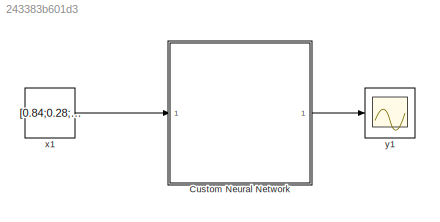
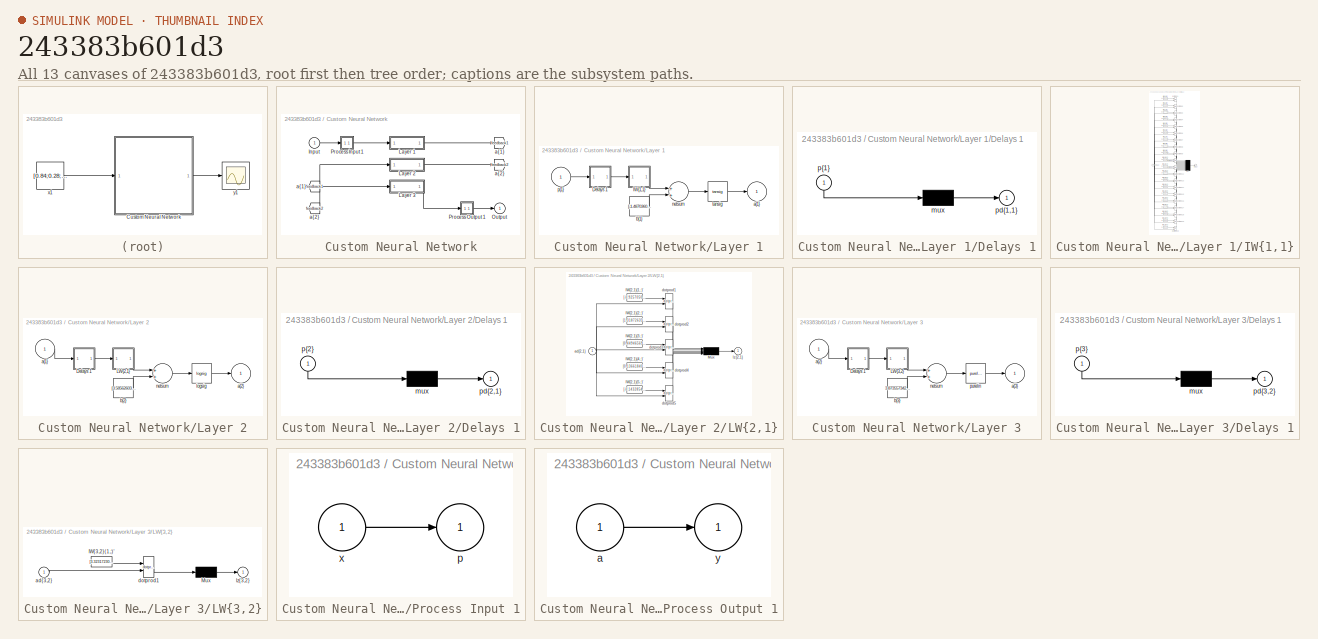
[diagram: thumbnail index - all 13 canvases of the model, root first then tree order]
MODEL slx_243383b601d3
KIND model
CONFIG AbsTol = auto
CONFIG EnableMultiTasking = off
CONFIG FixedStep = auto
CONFIG MaxStep = auto
CONFIG MinStep = auto
CONFIG RelTol = 1e-3
CONFIG SampleTimeConstraint = Unconstrained
CONFIG Solver = VariableStepAuto
CONFIG SolverName = VariableStepAuto
CONFIG StartTime = 0.0
CONFIG StopTime = 10.0
BLOCK [SubSystem] Custom Neural Network
  Ports = [1, 1]
  RequestExecContextInheritance = off
  Variant = off
BLOCK [From] Custom Neural Network/ a{1} 
  GotoTag = feedback1
BLOCK [From] Custom Neural Network/ a{2} 
  GotoTag = feedback2
BLOCK [Inport] Custom Neural Network/Input
  IconDisplay = Port number
  PortDimensions = 3
BLOCK [SubSystem] Custom Neural Network/Layer 1
  Ports = [1, 1]
  RequestExecContextInheritance = off
  Variant = off
BLOCK [SubSystem] Custom Neural Network/Layer 1/Delays 1
  Ports = [1, 1]
  RequestExecContextInheritance = off
  Variant = off
BLOCK [Mux] Custom Neural Network/Layer 1/Delays 1/mux
  Inputs = 1
  Ports = [1, 1]
BLOCK [Outport] Custom Neural Network/Layer 1/Delays 1/pd{1,1}
  IconDisplay = Port number
BLOCK [Inport] Custom Neural Network/Layer 1/Delays 1/p{1}
  IconDisplay = Port number
  PortDimensions = 3
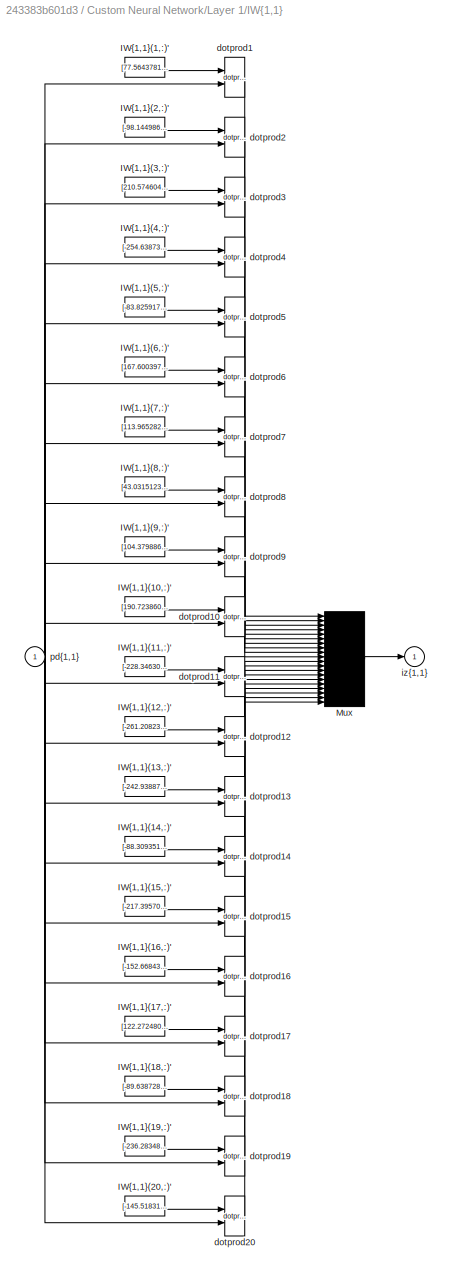
BLOCK [SubSystem] Custom Neural Network/Layer 1/IW{1,1}
  Ports = [1, 1]
  RequestExecContextInheritance = off
  Variant = off
BLOCK [Constant] Custom Neural Network/Layer 1/IW{1,1}/IW{1,1}(1,:)'
  Value = [77.5643781500551909857676946558058261871337890625;16.7822413652701669661837513558566570281982421875;0.01365506815999049071430615498456973000429570674896240234375]
BLOCK [Constant] Custom Neural Network/Layer 1/IW{1,1}/IW{1,1}(10,:)'
  Value = [190.723860716227363809593953192234039306640625;9.7629006233463844210973547887988388538360595703125;0.0497665617083417888277807605845737271010875701904296875]
BLOCK [Constant] Custom Neural Network/Layer 1/IW{1,1}/IW{1,1}(11,:)'
  Value = [-228.3463022169629539348534308373928070068359375;-16.000696254974105414703444694168865680694580078125;-0.00790686008955201503900500625832137302495539188385009765625]
BLOCK [Constant] Custom Neural Network/Layer 1/IW{1,1}/IW{1,1}(12,:)'
  Value = [-261.20823921115578514218213967978954315185546875;-10.8347586066941321547574261785484850406646728515625;0.388289365723650192752103293969412334263324737548828125]
BLOCK [Constant] Custom Neural Network/Layer 1/IW{1,1}/IW{1,1}(13,:)'
  Value = [-242.9388763296668685143231414258480072021484375;19.276983067467508448089574812911450862884521484375;0.146576204317648228769854767961078323423862457275390625]
BLOCK [Constant] Custom Neural Network/Layer 1/IW{1,1}/IW{1,1}(14,:)'
  Value = [-88.309351319106241362533182837069034576416015625;-18.734876729374814630091350409202277660369873046875;0.52645624509856292494447416174807585775852203369140625]
BLOCK [Constant] Custom Neural Network/Layer 1/IW{1,1}/IW{1,1}(15,:)'
  Value = [-217.39570487190957237544353120028972625732421875;-15.3551855896504747533981571905314922332763671875;0.11076690601105197708786676003001048229634761810302734375]
BLOCK [Constant] Custom Neural Network/Layer 1/IW{1,1}/IW{1,1}(16,:)'
  Value = [-152.668439742082455268246121704578399658203125;-18.680169445844487796648536459542810916900634765625;-0.08256644445768468454360800024005584418773651123046875]
BLOCK [Constant] Custom Neural Network/Layer 1/IW{1,1}/IW{1,1}(17,:)'
  Value = [122.272480212914075536900782026350498199462890625;-16.007769816139624907691541011445224285125732421875;0.30182160386999357104542696106364019215106964111328125]
BLOCK [Constant] Custom Neural Network/Layer 1/IW{1,1}/IW{1,1}(18,:)'
  Value = [-89.638728445288421653458499349653720855712890625;-2.872361075445937661498874149401672184467315673828125;-0.0410592062398744961360108618464437313377857208251953125]
BLOCK [Constant] Custom Neural Network/Layer 1/IW{1,1}/IW{1,1}(19,:)'
  Value = [-236.283483857654317716878722421824932098388671875;-16.578434767357808965471122064627707004547119140625;-7.63117726641143523380605984129942953586578369140625]
BLOCK [Constant] Custom Neural Network/Layer 1/IW{1,1}/IW{1,1}(2,:)'
  Value = [-98.1449867223830523244032519869506359100341796875;-11.4614141017716946180371451191604137420654296875;-0.08538728926916037964556238648583530448377132415771484375]
BLOCK [Constant] Custom Neural Network/Layer 1/IW{1,1}/IW{1,1}(20,:)'
  Value = [-145.518318988917116030279430560767650604248046875;14.4392096753615692961147942696698009967803955078125;0.313749042935470512372120310828904621303081512451171875]
BLOCK [Constant] Custom Neural Network/Layer 1/IW{1,1}/IW{1,1}(3,:)'
  Value = [210.574604014052312095373054035007953643798828125;9.410627781170557426548839430324733257293701171875;0.0861046092861901257720091962255537509918212890625]
BLOCK [Constant] Custom Neural Network/Layer 1/IW{1,1}/IW{1,1}(4,:)'
  Value = [-254.6387379441151779246865771710872650146484375;-21.20179213787621819164996850304305553436279296875;0.31296505137413721531203236736473627388477325439453125]
BLOCK [Constant] Custom Neural Network/Layer 1/IW{1,1}/IW{1,1}(5,:)'
  Value = [-83.82591744496909313966170884668827056884765625;-7.99078524786944210944739097612909972667694091796875;-0.41592651509284983557535042564268223941326141357421875]
BLOCK [Constant] Custom Neural Network/Layer 1/IW{1,1}/IW{1,1}(6,:)'
  Value = [167.60039731956612740759737789630889892578125;58.42709487239321930474034161306917667388916015625;-0.373177794365607773396931179377133958041667938232421875]
BLOCK [Constant] Custom Neural Network/Layer 1/IW{1,1}/IW{1,1}(7,:)'
  Value = [113.9652829800464814979932270944118499755859375;23.711569669322674513978199684061110019683837890625;-0.2354784938074974964816732381223118863999843597412109375]
BLOCK [Constant] Custom Neural Network/Layer 1/IW{1,1}/IW{1,1}(8,:)'
  Value = [43.031512395787530067536863498389720916748046875;13.0395652837316138317191871465183794498443603515625;-0.368695448079933651985840015186113305389881134033203125]
BLOCK [Constant] Custom Neural Network/Layer 1/IW{1,1}/IW{1,1}(9,:)'
  Value = [104.3798860859237578324609785340726375579833984375;16.43771962948019194072912796400487422943115234375;-0.0200010042884630236115217627457241178490221500396728515625]
BLOCK [Mux] Custom Neural Network/Layer 1/IW{1,1}/Mux
  Inputs = 20
  Ports = [20, 1]
BLOCK [Reference] Custom Neural Network/Layer 1/IW{1,1}/dotprod1  REF=neural/Weight Functions/dotprod
  Ports = [2, 1]
  SourceBlock = neural/Weight Functions/dotprod
  SourceProductBaseCode = NN
  SourceProductName = Neural Network Toolbox
  SourceType = DOTPROD
BLOCK [Reference] Custom Neural Network/Layer 1/IW{1,1}/dotprod10  REF=neural/Weight Functions/dotprod
  Ports = [2, 1]
  SourceBlock = neural/Weight Functions/dotprod
  SourceProductBaseCode = NN
  SourceProductName = Neural Network Toolbox
  SourceType = DOTPROD
BLOCK [Reference] Custom Neural Network/Layer 1/IW{1,1}/dotprod11  REF=neural/Weight Functions/dotprod
  Ports = [2, 1]
  SourceBlock = neural/Weight Functions/dotprod
  SourceProductBaseCode = NN
  SourceProductName = Neural Network Toolbox
  SourceType = DOTPROD
BLOCK [Reference] Custom Neural Network/Layer 1/IW{1,1}/dotprod12  REF=neural/Weight Functions/dotprod
  Ports = [2, 1]
  SourceBlock = neural/Weight Functions/dotprod
  SourceProductBaseCode = NN
  SourceProductName = Neural Network Toolbox
  SourceType = DOTPROD
BLOCK [Reference] Custom Neural Network/Layer 1/IW{1,1}/dotprod13  REF=neural/Weight Functions/dotprod
  Ports = [2, 1]
  SourceBlock = neural/Weight Functions/dotprod
  SourceProductBaseCode = NN
  SourceProductName = Neural Network Toolbox
  SourceType = DOTPROD
BLOCK [Reference] Custom Neural Network/Layer 1/IW{1,1}/dotprod14  REF=neural/Weight Functions/dotprod
  Ports = [2, 1]
  SourceBlock = neural/Weight Functions/dotprod
  SourceProductBaseCode = NN
  SourceProductName = Neural Network Toolbox
  SourceType = DOTPROD
BLOCK [Reference] Custom Neural Network/Layer 1/IW{1,1}/dotprod15  REF=neural/Weight Functions/dotprod
  Ports = [2, 1]
  SourceBlock = neural/Weight Functions/dotprod
  SourceProductBaseCode = NN
  SourceProductName = Neural Network Toolbox
  SourceType = DOTPROD
BLOCK [Reference] Custom Neural Network/Layer 1/IW{1,1}/dotprod16  REF=neural/Weight Functions/dotprod
  Ports = [2, 1]
  SourceBlock = neural/Weight Functions/dotprod
  SourceProductBaseCode = NN
  SourceProductName = Neural Network Toolbox
  SourceType = DOTPROD
BLOCK [Reference] Custom Neural Network/Layer 1/IW{1,1}/dotprod17  REF=neural/Weight Functions/dotprod
  Ports = [2, 1]
  SourceBlock = neural/Weight Functions/dotprod
  SourceProductBaseCode = NN
  SourceProductName = Neural Network Toolbox
  SourceType = DOTPROD
BLOCK [Reference] Custom Neural Network/Layer 1/IW{1,1}/dotprod18  REF=neural/Weight Functions/dotprod
  Ports = [2, 1]
  SourceBlock = neural/Weight Functions/dotprod
  SourceProductBaseCode = NN
  SourceProductName = Neural Network Toolbox
  SourceType = DOTPROD
BLOCK [Reference] Custom Neural Network/Layer 1/IW{1,1}/dotprod19  REF=neural/Weight Functions/dotprod
  Ports = [2, 1]
  SourceBlock = neural/Weight Functions/dotprod
  SourceProductBaseCode = NN
  SourceProductName = Neural Network Toolbox
  SourceType = DOTPROD
BLOCK [Reference] Custom Neural Network/Layer 1/IW{1,1}/dotprod2  REF=neural/Weight Functions/dotprod
  Ports = [2, 1]
  SourceBlock = neural/Weight Functions/dotprod
  SourceProductBaseCode = NN
  SourceProductName = Neural Network Toolbox
  SourceType = DOTPROD
BLOCK [Reference] Custom Neural Network/Layer 1/IW{1,1}/dotprod20  REF=neural/Weight Functions/dotprod
  Ports = [2, 1]
  SourceBlock = neural/Weight Functions/dotprod
  SourceProductBaseCode = NN
  SourceProductName = Neural Network Toolbox
  SourceType = DOTPROD
BLOCK [Reference] Custom Neural Network/Layer 1/IW{1,1}/dotprod3  REF=neural/Weight Functions/dotprod
  Ports = [2, 1]
  SourceBlock = neural/Weight Functions/dotprod
  SourceProductBaseCode = NN
  SourceProductName = Neural Network Toolbox
  SourceType = DOTPROD
BLOCK [Reference] Custom Neural Network/Layer 1/IW{1,1}/dotprod4  REF=neural/Weight Functions/dotprod
  Ports = [2, 1]
  SourceBlock = neural/Weight Functions/dotprod
  SourceProductBaseCode = NN
  SourceProductName = Neural Network Toolbox
  SourceType = DOTPROD
BLOCK [Reference] Custom Neural Network/Layer 1/IW{1,1}/dotprod5  REF=neural/Weight Functions/dotprod
  Ports = [2, 1]
  SourceBlock = neural/Weight Functions/dotprod
  SourceProductBaseCode = NN
  SourceProductName = Neural Network Toolbox
  SourceType = DOTPROD
BLOCK [Reference] Custom Neural Network/Layer 1/IW{1,1}/dotprod6  REF=neural/Weight Functions/dotprod
  Ports = [2, 1]
  SourceBlock = neural/Weight Functions/dotprod
  SourceProductBaseCode = NN
  SourceProductName = Neural Network Toolbox
  SourceType = DOTPROD
BLOCK [Reference] Custom Neural Network/Layer 1/IW{1,1}/dotprod7  REF=neural/Weight Functions/dotprod
  Ports = [2, 1]
  SourceBlock = neural/Weight Functions/dotprod
  SourceProductBaseCode = NN
  SourceProductName = Neural Network Toolbox
  SourceType = DOTPROD
BLOCK [Reference] Custom Neural Network/Layer 1/IW{1,1}/dotprod8  REF=neural/Weight Functions/dotprod
  Ports = [2, 1]
  SourceBlock = neural/Weight Functions/dotprod
  SourceProductBaseCode = NN
  SourceProductName = Neural Network Toolbox
  SourceType = DOTPROD
BLOCK [Reference] Custom Neural Network/Layer 1/IW{1,1}/dotprod9  REF=neural/Weight Functions/dotprod
  Ports = [2, 1]
  SourceBlock = neural/Weight Functions/dotprod
  SourceProductBaseCode = NN
  SourceProductName = Neural Network Toolbox
  SourceType = DOTPROD
BLOCK [Outport] Custom Neural Network/Layer 1/IW{1,1}/iz{1,1}
  IconDisplay = Port number
BLOCK [Inport] Custom Neural Network/Layer 1/IW{1,1}/pd{1,1}
  IconDisplay = Port number
  PortDimensions = 3
BLOCK [Outport] Custom Neural Network/Layer 1/a{1}
  IconDisplay = Port number
  InitialOutput = [0;0;0;0;0;0;0;0;0;0;0;0;0;0;0;0;0;0;0;0]
BLOCK [Constant] Custom Neural Network/Layer 1/b{1}
  Value = [-1.487036069525373704891535453498363494873046875;5.22498880789575270711111443233676254749298095703125;-5.77554145226792048362085552071221172809600830078125;1.4589255038114938844984180832398124039173126220703125;6.99072146054141985160867989179678261280059814453125;-8.8182806189804328056425219983793795108795166015625;-1.6077045993571903448327020669239573180675506591796875;0.708759640200917084840170...<+677ch>
BLOCK [Sum] Custom Neural Network/Layer 1/netsum
  Inputs = 2
  Ports = [2, 1]
BLOCK [Inport] Custom Neural Network/Layer 1/p{1}
  IconDisplay = Port number
  PortDimensions = 3
BLOCK [Reference] Custom Neural Network/Layer 1/tansig  REF=neural/Transfer Functions/tansig
  Ports = [1, 1]
  SourceBlock = neural/Transfer Functions/tansig
  SourceProductBaseCode = NN
  SourceProductName = Neural Network Toolbox
  SourceType = TANSIG
BLOCK [SubSystem] Custom Neural Network/Layer 2
  Ports = [1, 1]
  RequestExecContextInheritance = off
  Variant = off
BLOCK [SubSystem] Custom Neural Network/Layer 2/Delays 1
  Ports = [1, 1]
  RequestExecContextInheritance = off
  Variant = off
BLOCK [Mux] Custom Neural Network/Layer 2/Delays 1/mux
  Inputs = 1
  Ports = [1, 1]
BLOCK [Outport] Custom Neural Network/Layer 2/Delays 1/pd{2,1}
  IconDisplay = Port number
BLOCK [Inport] Custom Neural Network/Layer 2/Delays 1/p{2}
  IconDisplay = Port number
  PortDimensions = 20
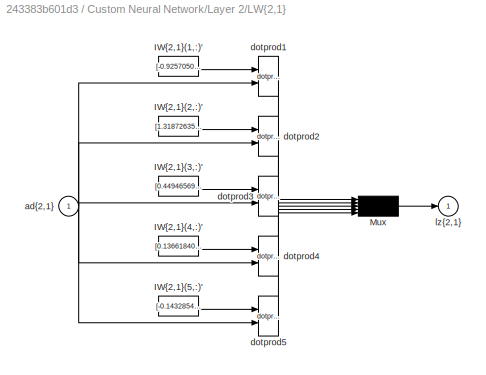
BLOCK [SubSystem] Custom Neural Network/Layer 2/LW{2,1}
  Ports = [1, 1]
  RequestExecContextInheritance = off
  Variant = off
BLOCK [Constant] Custom Neural Network/Layer 2/LW{2,1}/IW{2,1}(1,:)'
  Value = [-0.92570501663491244759285336840548552572727203369140625;-1.2365226132554012483666383559466339647769927978515625;-1.662565189936718201835219588247127830982208251953125;-0.49936726746016935063465780331171117722988128662109375;0.6396752563710326189294619325664825737476348876953125;-0.1223853849310526931137843575925217010080814361572265625;4.86688256843853839228586366516537964344024658203125;0.41319...<+722ch>
BLOCK [Constant] Custom Neural Network/Layer 2/LW{2,1}/IW{2,1}(2,:)'
  Value = [1.31872635768386015087116902577690780162811279296875;-0.0032491430274724530415098033842014046967960894107818603515625;1.933547954544418967515184704097919166088104248046875;-0.476317638430824252804285379170323722064495086669921875;0.50302024298476755159725826160865835845470428466796875;-0.1977819952841088635420163654998759739100933074951171875;1.8455769711037370850448269266053102910518646240234375...<+718ch>
BLOCK [Constant] Custom Neural Network/Layer 2/LW{2,1}/IW{2,1}(3,:)'
  Value = [0.44946569807094316484352702900650911033153533935546875;0.095143081761330294821021880125044845044612884521484375;0.46345744154453394347825678778463043272495269775390625;-1.117592939378338368072718367329798638820648193359375;-0.70450516626081161053463119969819672405719757080078125;-0.7155701920174433183774453937076032161712646484375;-0.485068181708110557348589964021812193095684051513671875;-0.9606...<+711ch>
BLOCK [Constant] Custom Neural Network/Layer 2/LW{2,1}/IW{2,1}(4,:)'
  Value = [0.13661840760436472219652159765246324241161346435546875;-0.092460730633099619257819767881301231682300567626953125;0.01449413040976762177824976873807827359996736049652099609375;1.1585121321072462396983837606967426836490631103515625;0.301200537208859364657342894133762456476688385009765625;-0.01290642867447498211286305291878306888975203037261962890625;-1.592221179532499197861739048676099628210067749...<+724ch>
BLOCK [Constant] Custom Neural Network/Layer 2/LW{2,1}/IW{2,1}(5,:)'
  Value = [-0.1432854057877666897891089092809124849736690521240234375;0.69495687908579306668599429031019099056720733642578125;0.50583736089709263605840305899619124829769134521484375;-1.1778495832769906304093865401227958500385284423828125;-0.7561357691175436546160426587448455393314361572265625;-0.318137729325066176411240803645341657102108001708984375;-1.6977768852309511604659064687439240515232086181640625;-0...<+706ch>
BLOCK [Mux] Custom Neural Network/Layer 2/LW{2,1}/Mux
  Inputs = 5
  Ports = [5, 1]
BLOCK [Inport] Custom Neural Network/Layer 2/LW{2,1}/ad{2,1}
  IconDisplay = Port number
  PortDimensions = 20
BLOCK [Reference] Custom Neural Network/Layer 2/LW{2,1}/dotprod1  REF=neural/Weight Functions/dotprod
  Ports = [2, 1]
  SourceBlock = neural/Weight Functions/dotprod
  SourceProductBaseCode = NN
  SourceProductName = Neural Network Toolbox
  SourceType = DOTPROD
BLOCK [Reference] Custom Neural Network/Layer 2/LW{2,1}/dotprod2  REF=neural/Weight Functions/dotprod
  Ports = [2, 1]
  SourceBlock = neural/Weight Functions/dotprod
  SourceProductBaseCode = NN
  SourceProductName = Neural Network Toolbox
  SourceType = DOTPROD
BLOCK [Reference] Custom Neural Network/Layer 2/LW{2,1}/dotprod3  REF=neural/Weight Functions/dotprod
  Ports = [2, 1]
  SourceBlock = neural/Weight Functions/dotprod
  SourceProductBaseCode = NN
  SourceProductName = Neural Network Toolbox
  SourceType = DOTPROD
BLOCK [Reference] Custom Neural Network/Layer 2/LW{2,1}/dotprod4  REF=neural/Weight Functions/dotprod
  Ports = [2, 1]
  SourceBlock = neural/Weight Functions/dotprod
  SourceProductBaseCode = NN
  SourceProductName = Neural Network Toolbox
  SourceType = DOTPROD
BLOCK [Reference] Custom Neural Network/Layer 2/LW{2,1}/dotprod5  REF=neural/Weight Functions/dotprod
  Ports = [2, 1]
  SourceBlock = neural/Weight Functions/dotprod
  SourceProductBaseCode = NN
  SourceProductName = Neural Network Toolbox
  SourceType = DOTPROD
BLOCK [Outport] Custom Neural Network/Layer 2/LW{2,1}/lz{2,1}
  IconDisplay = Port number
BLOCK [Inport] Custom Neural Network/Layer 2/a{1} 
  IconDisplay = Port number
  PortDimensions = 20
BLOCK [Outport] Custom Neural Network/Layer 2/a{2}
  IconDisplay = Port number
  InitialOutput = [0;0;0;0;0]
BLOCK [Constant] Custom Neural Network/Layer 2/b{2}
  Value = [3.585626030233567629323943037888966500759124755859375;-1.2622117719339966956937360009760595858097076416015625;-0.2283983932589087884057477140231640078127384185791015625;1.889226614254667868664228080888278782367706298828125;-3.4221749390384932354436386958695948123931884765625]
BLOCK [Reference] Custom Neural Network/Layer 2/logsig  REF=neural/Transfer Functions/logsig
  Ports = [1, 1]
  SourceBlock = neural/Transfer Functions/logsig
  SourceProductBaseCode = NN
  SourceProductName = Neural Network Toolbox
  SourceType = LOGSIG
BLOCK [Sum] Custom Neural Network/Layer 2/netsum
  Inputs = 2
  Ports = [2, 1]
BLOCK [SubSystem] Custom Neural Network/Layer 3
  Ports = [1, 1]
  RequestExecContextInheritance = off
  Variant = off
BLOCK [SubSystem] Custom Neural Network/Layer 3/Delays 1
  Ports = [1, 1]
  RequestExecContextInheritance = off
  Variant = off
BLOCK [Mux] Custom Neural Network/Layer 3/Delays 1/mux
  Inputs = 1
  Ports = [1, 1]
BLOCK [Outport] Custom Neural Network/Layer 3/Delays 1/pd{3,2}
  IconDisplay = Port number
BLOCK [Inport] Custom Neural Network/Layer 3/Delays 1/p{3}
  IconDisplay = Port number
  PortDimensions = 5
BLOCK [SubSystem] Custom Neural Network/Layer 3/LW{3,2}
  Ports = [1, 1]
  RequestExecContextInheritance = off
  Variant = off
BLOCK [Constant] Custom Neural Network/Layer 3/LW{3,2}/IW{3,2}(1,:)'
  Value = [3.323172303825814299926832973142154514789581298828125;-1.9984880517661824939068537787534296512603759765625;6.8124387429590651521493782638572156429290771484375;4.0203010758155386383805307559669017791748046875;3.2285823109692213250809800229035317897796630859375]
BLOCK [Mux] Custom Neural Network/Layer 3/LW{3,2}/Mux
  Inputs = 1
  Ports = [1, 1]
BLOCK [Inport] Custom Neural Network/Layer 3/LW{3,2}/ad{3,2}
  IconDisplay = Port number
  PortDimensions = 5
BLOCK [Reference] Custom Neural Network/Layer 3/LW{3,2}/dotprod1  REF=neural/Weight Functions/dotprod
  Ports = [2, 1]
  SourceBlock = neural/Weight Functions/dotprod
  SourceProductBaseCode = NN
  SourceProductName = Neural Network Toolbox
  SourceType = DOTPROD
BLOCK [Outport] Custom Neural Network/Layer 3/LW{3,2}/lz{3,2}
  IconDisplay = Port number
BLOCK [Inport] Custom Neural Network/Layer 3/a{2} 
  IconDisplay = Port number
  PortDimensions = 5
BLOCK [Outport] Custom Neural Network/Layer 3/a{3}
  IconDisplay = Port number
  InitialOutput = 0
BLOCK [Constant] Custom Neural Network/Layer 3/b{3}
  Value = 3.87355734278204355547359227784909307956695556640625
BLOCK [Sum] Custom Neural Network/Layer 3/netsum
  Inputs = 2
  Ports = [2, 1]
BLOCK [Reference] Custom Neural Network/Layer 3/purelin  REF=neural/Transfer Functions/purelin
  Ports = [1, 1]
  SourceBlock = neural/Transfer Functions/purelin
  SourceProductBaseCode = NN
  SourceProductName = Neural Network Toolbox
  SourceType = PURELIN
BLOCK [Outport] Custom Neural Network/Output
  IconDisplay = Port number
  InitialOutput = 0
BLOCK [SubSystem] Custom Neural Network/Process Input 1
  Ports = [1, 1]
  RequestExecContextInheritance = off
  Variant = off
BLOCK [Outport] Custom Neural Network/Process Input 1/p
  IconDisplay = Port number
  PortDimensions = 3
BLOCK [Inport] Custom Neural Network/Process Input 1/x
  IconDisplay = Port number
  PortDimensions = 3
BLOCK [SubSystem] Custom Neural Network/Process Output 1
  Ports = [1, 1]
  RequestExecContextInheritance = off
  Variant = off
BLOCK [Inport] Custom Neural Network/Process Output 1/a
  IconDisplay = Port number
  PortDimensions = 1
BLOCK [Outport] Custom Neural Network/Process Output 1/y
  IconDisplay = Port number
  PortDimensions = 1
BLOCK [Goto] Custom Neural Network/a{1}
  GotoTag = feedback1
BLOCK [Goto] Custom Neural Network/a{2}
  GotoTag = feedback2
BLOCK [Constant] x1
  SampleTime = 1
  Value = [0.84;0.28;0.04]
BLOCK [Scope] y1
  NumInputPorts = 1
  Ports = [1]
  ScopeSpecificationString = Simulink.scopes.TimeScopeBlockCfg('CurrentConfiguration', extmgr.ConfigurationSet(extmgr.Configuration('Core','General UI',true),extmgr.Configuration('Core','Source UI',true),extmgr.Configuration('Sources','WiredSimulink',true),extmgr.Configuration('Visuals','Time Domain',true,'SerializedDisplays',{struct('MinYLimReal','3.80448','MaxYLimReal','23.80448','YLabelReal','','MinYLimMag','3.80448','MaxY...<+1401ch>
LINE Custom Neural Network/ a{1} :1 -> Custom Neural Network/Layer 2:1
LINE Custom Neural Network/ a{2} :1 -> Custom Neural Network/Layer 3:1
LINE Custom Neural Network/Input:1 -> Custom Neural Network/Process Input 1:1
LINE Custom Neural Network/Layer 1/Delays 1/mux:1 -> Custom Neural Network/Layer 1/Delays 1/pd{1,1}:1
LINE Custom Neural Network/Layer 1/Delays 1/p{1}:1 -> Custom Neural Network/Layer 1/Delays 1/mux:1
LINE Custom Neural Network/Layer 1/Delays 1:1 -> Custom Neural Network/Layer 1/IW{1,1}:1
LINE Custom Neural Network/Layer 1/IW{1,1}/IW{1,1}(1,:)':1 -> Custom Neural Network/Layer 1/IW{1,1}/dotprod1:1
LINE Custom Neural Network/Layer 1/IW{1,1}/IW{1,1}(10,:)':1 -> Custom Neural Network/Layer 1/IW{1,1}/dotprod10:1
LINE Custom Neural Network/Layer 1/IW{1,1}/IW{1,1}(11,:)':1 -> Custom Neural Network/Layer 1/IW{1,1}/dotprod11:1
LINE Custom Neural Network/Layer 1/IW{1,1}/IW{1,1}(12,:)':1 -> Custom Neural Network/Layer 1/IW{1,1}/dotprod12:1
LINE Custom Neural Network/Layer 1/IW{1,1}/IW{1,1}(13,:)':1 -> Custom Neural Network/Layer 1/IW{1,1}/dotprod13:1
LINE Custom Neural Network/Layer 1/IW{1,1}/IW{1,1}(14,:)':1 -> Custom Neural Network/Layer 1/IW{1,1}/dotprod14:1
LINE Custom Neural Network/Layer 1/IW{1,1}/IW{1,1}(15,:)':1 -> Custom Neural Network/Layer 1/IW{1,1}/dotprod15:1
LINE Custom Neural Network/Layer 1/IW{1,1}/IW{1,1}(16,:)':1 -> Custom Neural Network/Layer 1/IW{1,1}/dotprod16:1
LINE Custom Neural Network/Layer 1/IW{1,1}/IW{1,1}(17,:)':1 -> Custom Neural Network/Layer 1/IW{1,1}/dotprod17:1
LINE Custom Neural Network/Layer 1/IW{1,1}/IW{1,1}(18,:)':1 -> Custom Neural Network/Layer 1/IW{1,1}/dotprod18:1
LINE Custom Neural Network/Layer 1/IW{1,1}/IW{1,1}(19,:)':1 -> Custom Neural Network/Layer 1/IW{1,1}/dotprod19:1
LINE Custom Neural Network/Layer 1/IW{1,1}/IW{1,1}(2,:)':1 -> Custom Neural Network/Layer 1/IW{1,1}/dotprod2:1
LINE Custom Neural Network/Layer 1/IW{1,1}/IW{1,1}(20,:)':1 -> Custom Neural Network/Layer 1/IW{1,1}/dotprod20:1
LINE Custom Neural Network/Layer 1/IW{1,1}/IW{1,1}(3,:)':1 -> Custom Neural Network/Layer 1/IW{1,1}/dotprod3:1
LINE Custom Neural Network/Layer 1/IW{1,1}/IW{1,1}(4,:)':1 -> Custom Neural Network/Layer 1/IW{1,1}/dotprod4:1
LINE Custom Neural Network/Layer 1/IW{1,1}/IW{1,1}(5,:)':1 -> Custom Neural Network/Layer 1/IW{1,1}/dotprod5:1
LINE Custom Neural Network/Layer 1/IW{1,1}/IW{1,1}(6,:)':1 -> Custom Neural Network/Layer 1/IW{1,1}/dotprod6:1
LINE Custom Neural Network/Layer 1/IW{1,1}/IW{1,1}(7,:)':1 -> Custom Neural Network/Layer 1/IW{1,1}/dotprod7:1
LINE Custom Neural Network/Layer 1/IW{1,1}/IW{1,1}(8,:)':1 -> Custom Neural Network/Layer 1/IW{1,1}/dotprod8:1
LINE Custom Neural Network/Layer 1/IW{1,1}/IW{1,1}(9,:)':1 -> Custom Neural Network/Layer 1/IW{1,1}/dotprod9:1
LINE Custom Neural Network/Layer 1/IW{1,1}/Mux:1 -> Custom Neural Network/Layer 1/IW{1,1}/iz{1,1}:1
LINE Custom Neural Network/Layer 1/IW{1,1}/dotprod10:1 -> Custom Neural Network/Layer 1/IW{1,1}/Mux:10
LINE Custom Neural Network/Layer 1/IW{1,1}/dotprod11:1 -> Custom Neural Network/Layer 1/IW{1,1}/Mux:11
LINE Custom Neural Network/Layer 1/IW{1,1}/dotprod12:1 -> Custom Neural Network/Layer 1/IW{1,1}/Mux:12
LINE Custom Neural Network/Layer 1/IW{1,1}/dotprod13:1 -> Custom Neural Network/Layer 1/IW{1,1}/Mux:13
LINE Custom Neural Network/Layer 1/IW{1,1}/dotprod14:1 -> Custom Neural Network/Layer 1/IW{1,1}/Mux:14
LINE Custom Neural Network/Layer 1/IW{1,1}/dotprod15:1 -> Custom Neural Network/Layer 1/IW{1,1}/Mux:15
LINE Custom Neural Network/Layer 1/IW{1,1}/dotprod16:1 -> Custom Neural Network/Layer 1/IW{1,1}/Mux:16
LINE Custom Neural Network/Layer 1/IW{1,1}/dotprod17:1 -> Custom Neural Network/Layer 1/IW{1,1}/Mux:17
LINE Custom Neural Network/Layer 1/IW{1,1}/dotprod18:1 -> Custom Neural Network/Layer 1/IW{1,1}/Mux:18
LINE Custom Neural Network/Layer 1/IW{1,1}/dotprod19:1 -> Custom Neural Network/Layer 1/IW{1,1}/Mux:19
LINE Custom Neural Network/Layer 1/IW{1,1}/dotprod1:1 -> Custom Neural Network/Layer 1/IW{1,1}/Mux:1
LINE Custom Neural Network/Layer 1/IW{1,1}/dotprod20:1 -> Custom Neural Network/Layer 1/IW{1,1}/Mux:20
LINE Custom Neural Network/Layer 1/IW{1,1}/dotprod2:1 -> Custom Neural Network/Layer 1/IW{1,1}/Mux:2
LINE Custom Neural Network/Layer 1/IW{1,1}/dotprod3:1 -> Custom Neural Network/Layer 1/IW{1,1}/Mux:3
LINE Custom Neural Network/Layer 1/IW{1,1}/dotprod4:1 -> Custom Neural Network/Layer 1/IW{1,1}/Mux:4
LINE Custom Neural Network/Layer 1/IW{1,1}/dotprod5:1 -> Custom Neural Network/Layer 1/IW{1,1}/Mux:5
LINE Custom Neural Network/Layer 1/IW{1,1}/dotprod6:1 -> Custom Neural Network/Layer 1/IW{1,1}/Mux:6
LINE Custom Neural Network/Layer 1/IW{1,1}/dotprod7:1 -> Custom Neural Network/Layer 1/IW{1,1}/Mux:7
LINE Custom Neural Network/Layer 1/IW{1,1}/dotprod8:1 -> Custom Neural Network/Layer 1/IW{1,1}/Mux:8
LINE Custom Neural Network/Layer 1/IW{1,1}/dotprod9:1 -> Custom Neural Network/Layer 1/IW{1,1}/Mux:9
NET Custom Neural Network/Layer 1/IW{1,1}/pd{1,1}:1 -> Custom Neural Network/Layer 1/IW{1,1}/dotprod10:2, Custom Neural Network/Layer 1/IW{1,1}/dotprod11:2, Custom Neural Network/Layer 1/IW{1,1}/dotprod12:2, Custom Neural Network/Layer 1/IW{1,1}/dotprod13:2, Custom Neural Network/Layer 1/IW{1,1}/dotprod14:2, Custom Neural Network/Layer 1/IW{1,1}/dotprod15:2, Custom Neural Network/Layer 1/IW{1,1}/dotprod16:2, Custom Neural Network/Layer 1/IW{1,1}/dotprod17:2, Custom Neural Network/Layer 1/IW{1,1}/dotprod18:2, Custom Neural Network/Layer 1/IW{1,1}/dotprod19:2, Custom Neural Network/Layer 1/IW{1,1}/dotprod1:2, Custom Neural Network/Layer 1/IW{1,1}/dotprod20:2, Custom Neural Network/Layer 1/IW{1,1}/dotprod2:2, Custom Neural Network/Layer 1/IW{1,1}/dotprod3:2, Custom Neural Network/Layer 1/IW{1,1}/dotprod4:2, Custom Neural Network/Layer 1/IW{1,1}/dotprod5:2, Custom Neural Network/Layer 1/IW{1,1}/dotprod6:2, Custom Neural Network/Layer 1/IW{1,1}/dotprod7:2, Custom Neural Network/Layer 1/IW{1,1}/dotprod8:2, Custom Neural Network/Layer 1/IW{1,1}/dotprod9:2
LINE Custom Neural Network/Layer 1/IW{1,1}:1 -> Custom Neural Network/Layer 1/netsum:1
LINE Custom Neural Network/Layer 1/b{1}:1 -> Custom Neural Network/Layer 1/netsum:2
LINE Custom Neural Network/Layer 1/netsum:1 -> Custom Neural Network/Layer 1/tansig:1
LINE Custom Neural Network/Layer 1/p{1}:1 -> Custom Neural Network/Layer 1/Delays 1:1
LINE Custom Neural Network/Layer 1/tansig:1 -> Custom Neural Network/Layer 1/a{1}:1
LINE Custom Neural Network/Layer 1:1 -> Custom Neural Network/a{1}:1
LINE Custom Neural Network/Layer 2/Delays 1/mux:1 -> Custom Neural Network/Layer 2/Delays 1/pd{2,1}:1
LINE Custom Neural Network/Layer 2/Delays 1/p{2}:1 -> Custom Neural Network/Layer 2/Delays 1/mux:1
LINE Custom Neural Network/Layer 2/Delays 1:1 -> Custom Neural Network/Layer 2/LW{2,1}:1
LINE Custom Neural Network/Layer 2/LW{2,1}/IW{2,1}(1,:)':1 -> Custom Neural Network/Layer 2/LW{2,1}/dotprod1:1
LINE Custom Neural Network/Layer 2/LW{2,1}/IW{2,1}(2,:)':1 -> Custom Neural Network/Layer 2/LW{2,1}/dotprod2:1
LINE Custom Neural Network/Layer 2/LW{2,1}/IW{2,1}(3,:)':1 -> Custom Neural Network/Layer 2/LW{2,1}/dotprod3:1
LINE Custom Neural Network/Layer 2/LW{2,1}/IW{2,1}(4,:)':1 -> Custom Neural Network/Layer 2/LW{2,1}/dotprod4:1
LINE Custom Neural Network/Layer 2/LW{2,1}/IW{2,1}(5,:)':1 -> Custom Neural Network/Layer 2/LW{2,1}/dotprod5:1
LINE Custom Neural Network/Layer 2/LW{2,1}/Mux:1 -> Custom Neural Network/Layer 2/LW{2,1}/lz{2,1}:1
NET Custom Neural Network/Layer 2/LW{2,1}/ad{2,1}:1 -> Custom Neural Network/Layer 2/LW{2,1}/dotprod1:2, Custom Neural Network/Layer 2/LW{2,1}/dotprod2:2, Custom Neural Network/Layer 2/LW{2,1}/dotprod3:2, Custom Neural Network/Layer 2/LW{2,1}/dotprod4:2, Custom Neural Network/Layer 2/LW{2,1}/dotprod5:2
LINE Custom Neural Network/Layer 2/LW{2,1}/dotprod1:1 -> Custom Neural Network/Layer 2/LW{2,1}/Mux:1
LINE Custom Neural Network/Layer 2/LW{2,1}/dotprod2:1 -> Custom Neural Network/Layer 2/LW{2,1}/Mux:2
LINE Custom Neural Network/Layer 2/LW{2,1}/dotprod3:1 -> Custom Neural Network/Layer 2/LW{2,1}/Mux:3
LINE Custom Neural Network/Layer 2/LW{2,1}/dotprod4:1 -> Custom Neural Network/Layer 2/LW{2,1}/Mux:4
LINE Custom Neural Network/Layer 2/LW{2,1}/dotprod5:1 -> Custom Neural Network/Layer 2/LW{2,1}/Mux:5
LINE Custom Neural Network/Layer 2/LW{2,1}:1 -> Custom Neural Network/Layer 2/netsum:1
LINE Custom Neural Network/Layer 2/a{1} :1 -> Custom Neural Network/Layer 2/Delays 1:1
LINE Custom Neural Network/Layer 2/b{2}:1 -> Custom Neural Network/Layer 2/netsum:2
LINE Custom Neural Network/Layer 2/logsig:1 -> Custom Neural Network/Layer 2/a{2}:1
LINE Custom Neural Network/Layer 2/netsum:1 -> Custom Neural Network/Layer 2/logsig:1
LINE Custom Neural Network/Layer 2:1 -> Custom Neural Network/a{2}:1
LINE Custom Neural Network/Layer 3/Delays 1/mux:1 -> Custom Neural Network/Layer 3/Delays 1/pd{3,2}:1
LINE Custom Neural Network/Layer 3/Delays 1/p{3}:1 -> Custom Neural Network/Layer 3/Delays 1/mux:1
LINE Custom Neural Network/Layer 3/Delays 1:1 -> Custom Neural Network/Layer 3/LW{3,2}:1
LINE Custom Neural Network/Layer 3/LW{3,2}/IW{3,2}(1,:)':1 -> Custom Neural Network/Layer 3/LW{3,2}/dotprod1:1
LINE Custom Neural Network/Layer 3/LW{3,2}/Mux:1 -> Custom Neural Network/Layer 3/LW{3,2}/lz{3,2}:1
LINE Custom Neural Network/Layer 3/LW{3,2}/ad{3,2}:1 -> Custom Neural Network/Layer 3/LW{3,2}/dotprod1:2
LINE Custom Neural Network/Layer 3/LW{3,2}/dotprod1:1 -> Custom Neural Network/Layer 3/LW{3,2}/Mux:1
LINE Custom Neural Network/Layer 3/LW{3,2}:1 -> Custom Neural Network/Layer 3/netsum:1
LINE Custom Neural Network/Layer 3/a{2} :1 -> Custom Neural Network/Layer 3/Delays 1:1
LINE Custom Neural Network/Layer 3/b{3}:1 -> Custom Neural Network/Layer 3/netsum:2
LINE Custom Neural Network/Layer 3/netsum:1 -> Custom Neural Network/Layer 3/purelin:1
LINE Custom Neural Network/Layer 3/purelin:1 -> Custom Neural Network/Layer 3/a{3}:1
LINE Custom Neural Network/Layer 3:1 -> Custom Neural Network/Process Output 1:1
LINE Custom Neural Network/Process Input 1/x:1 -> Custom Neural Network/Process Input 1/p:1
LINE Custom Neural Network/Process Input 1:1 -> Custom Neural Network/Layer 1:1
LINE Custom Neural Network/Process Output 1/a:1 -> Custom Neural Network/Process Output 1/y:1
LINE Custom Neural Network/Process Output 1:1 -> Custom Neural Network/Output:1
LINE Custom Neural Network:1 -> y1:1
LINE x1:1 -> Custom Neural Network:1
note: NET lines group one-source signal fan-out (src -> all destinations, sorted); 1:1 wires keep LINE
